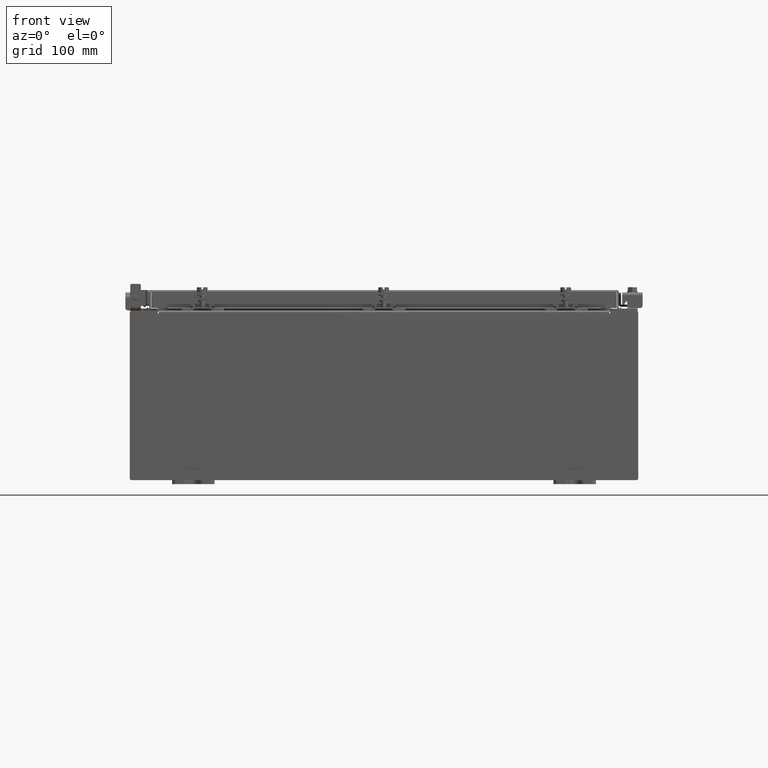
[diagram: clean part render]
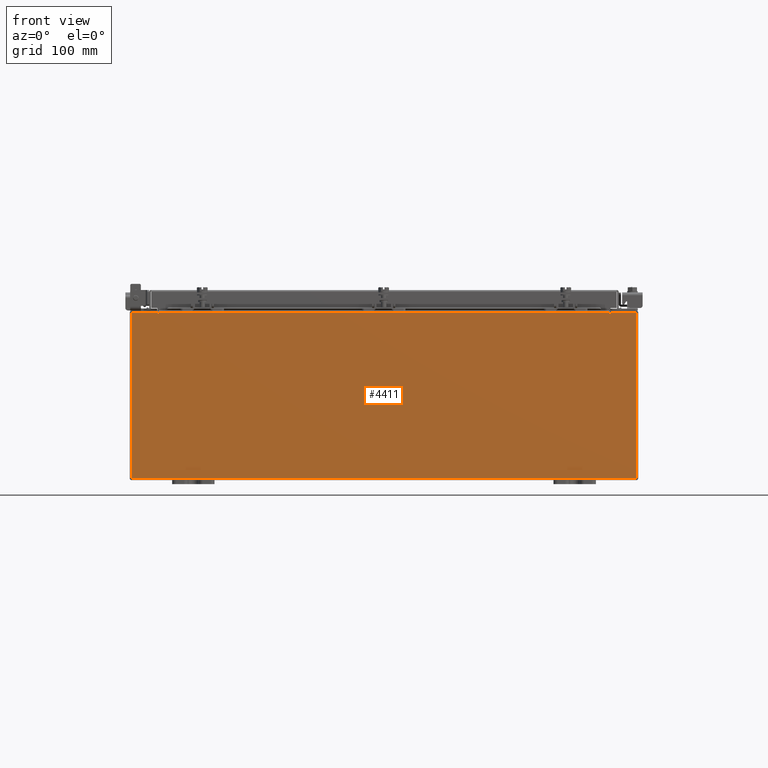
[diagram: same view with one face highlighted and labeled with its STEP entity id]
A machine part, front view. The second image highlights one B-rep face of the part: STEP entity #4411.
In plain terms, the highlighted planar face has unit normal (-0, 1, -0).
Its self-contained STEP definition (entity closure, byte-faithful):
#153 = EDGE_CURVE ( 'NONE', #14960, #22573, #16333, .T. ) ;
#563 = VERTEX_POINT ( 'NONE', #17960 ) ;
#1236 = CARTESIAN_POINT ( 'NONE',  ( 11.92530000000000000, 0.0000000000000000000, -3.925299999999999600 ) ) ;
#1411 = LINE ( 'NONE', #7525, #9578 ) ;
#1540 = CARTESIAN_POINT ( 'NONE',  ( -10.67455000000000200, 0.0000000000000000000, 3.925299999999999600 ) ) ;
#1650 = CARTESIAN_POINT ( 'NONE',  ( 10.67455000000000200, 0.0000000000000000000, 3.874949999999999700 ) ) ;
#1735 = LINE ( 'NONE', #16937, #10475 ) ;
#1742 = DIRECTION ( 'NONE',  ( 0.0000000000000000000, 0.0000000000000000000, 1.000000000000000000 ) ) ;
#2454 = ORIENTED_EDGE ( 'NONE', *, *, #6700, .T. ) ;
#2499 = LINE ( 'NONE', #6096, #19962 ) ;
#2681 = DIRECTION ( 'NONE',  ( -1.000000000000000000, -0.0000000000000000000, -0.0000000000000000000 ) ) ;
#2850 = AXIS2_PLACEMENT_3D ( 'NONE', #14268, #3812, #16014 ) ;
#3111 = LINE ( 'NONE', #19578, #20555 ) ;
#3351 = ORIENTED_EDGE ( 'NONE', *, *, #18026, .F. ) ;
#3430 = EDGE_CURVE ( 'NONE', #13779, #8722, #12433, .T. ) ;
#3443 = CARTESIAN_POINT ( 'NONE',  ( -11.92530000000000000, 0.0000000000000000000, -3.925299999999999600 ) ) ;
#3812 = DIRECTION ( 'NONE',  ( -0.0000000000000000000, 1.000000000000000000, -0.0000000000000000000 ) ) ;
#3911 = VECTOR ( 'NONE', #19098, 39.37007874015748100 ) ;
#4411 = ADVANCED_FACE ( 'NONE', ( #10488 ), #15941, .F. ) ;
#4783 = DIRECTION ( 'NONE',  ( 0.0000000000000000000, 0.0000000000000000000, 1.000000000000000000 ) ) ;
#5610 = DIRECTION ( 'NONE',  ( -4.340572780400004900E-014, 0.0000000000000000000, -1.000000000000000000 ) ) ;
#5904 = EDGE_CURVE ( 'NONE', #6003, #7668, #15575, .T. ) ;
#5921 = CARTESIAN_POINT ( 'NONE',  ( -11.92530000000000000, 0.0000000000000000000, 3.925299999999999600 ) ) ;
#6003 = VERTEX_POINT ( 'NONE', #19843 ) ;
#6096 = CARTESIAN_POINT ( 'NONE',  ( -11.92530000000000000, 0.0000000000000000000, -3.925299999999999600 ) ) ;
#6510 = EDGE_CURVE ( 'NONE', #10861, #14960, #11141, .T. ) ;
#6584 = CARTESIAN_POINT ( 'NONE',  ( -10.63720000000000400, 1.024442997624098700E-016, 3.912299999999999700 ) ) ;
#6700 = EDGE_CURVE ( 'NONE', #13462, #563, #17656, .T. ) ;
#6875 = CARTESIAN_POINT ( 'NONE',  ( -11.92530000000000000, 0.0000000000000000000, 3.925299999999999600 ) ) ;
#7237 = DIRECTION ( 'NONE',  ( 0.0000000000000000000, -1.000000000000000000, 0.0000000000000000000 ) ) ;
#7515 = ORIENTED_EDGE ( 'NONE', *, *, #153, .F. ) ;
#7525 = CARTESIAN_POINT ( 'NONE',  ( -10.63720000000000400, -0.0000000000000000000, 0.0000000000000000000 ) ) ;
#7668 = VERTEX_POINT ( 'NONE', #16895 ) ;
#7884 = CARTESIAN_POINT ( 'NONE',  ( -11.92530000000000000, 0.0000000000000000000, 3.925299999999999600 ) ) ;
#8722 = VERTEX_POINT ( 'NONE', #1540 ) ;
#8867 = LINE ( 'NONE', #21447, #17566 ) ;
#8993 = EDGE_CURVE ( 'NONE', #563, #15577, #8867, .T. ) ;
#9046 = ORIENTED_EDGE ( 'NONE', *, *, #3430, .T. ) ;
#9101 = CARTESIAN_POINT ( 'NONE',  ( -10.65587500000000200, 0.0000000000000000000, 3.874949999999999700 ) ) ;
#9414 = CARTESIAN_POINT ( 'NONE',  ( 10.63720000000000400, 0.0000000000000000000, 0.0000000000000000000 ) ) ;
#9578 = VECTOR ( 'NONE', #17974, 39.37007874015748100 ) ;
#10475 = VECTOR ( 'NONE', #18722, 39.37007874015748100 ) ;
#10488 = FACE_OUTER_BOUND ( 'NONE', #17143, .T. ) ;
#10759 = VERTEX_POINT ( 'NONE', #6584 ) ;
#10860 = DIRECTION ( 'NONE',  ( 0.0000000000000000000, 0.0000000000000000000, -1.000000000000000000 ) ) ;
#10861 = VERTEX_POINT ( 'NONE', #1650 ) ;
#10864 = VECTOR ( 'NONE', #1742, 39.37007874015748100 ) ;
#11141 = CIRCLE ( 'NONE', #2850, 0.01867499999999949400 ) ;
#11745 = CARTESIAN_POINT ( 'NONE',  ( 10.67455000000000200, 0.0000000000000000000, 3.925299999999999600 ) ) ;
#12113 = VERTEX_POINT ( 'NONE', #3443 ) ;
#12425 = CARTESIAN_POINT ( 'NONE',  ( -11.92530000000000000, 0.0000000000000000000, 3.925299999999999600 ) ) ;
#12433 = LINE ( 'NONE', #6875, #3911 ) ;
#12439 = LINE ( 'NONE', #7884, #21676 ) ;
#13050 = VECTOR ( 'NONE', #14644, 39.37007874015748100 ) ;
#13462 = VERTEX_POINT ( 'NONE', #11745 ) ;
#13525 = AXIS2_PLACEMENT_3D ( 'NONE', #9101, #21282, #10860 ) ;
#13651 = CARTESIAN_POINT ( 'NONE',  ( 10.63720000000000400, 0.0000000000000000000, 3.912299999999999700 ) ) ;
#13779 = VERTEX_POINT ( 'NONE', #12425 ) ;
#13936 = CARTESIAN_POINT ( 'NONE',  ( -10.67455000000000200, -0.0000000000000000000, 0.0000000000000000000 ) ) ;
#13992 = ORIENTED_EDGE ( 'NONE', *, *, #15035, .T. ) ;
#14268 = CARTESIAN_POINT ( 'NONE',  ( 10.65587500000000200, 0.0000000000000000000, 3.874949999999999700 ) ) ;
#14644 = DIRECTION ( 'NONE',  ( 1.000000000000000000, 0.0000000000000000000, 0.0000000000000000000 ) ) ;
#14960 = VERTEX_POINT ( 'NONE', #20162 ) ;
#15035 = EDGE_CURVE ( 'NONE', #10759, #22573, #1735, .T. ) ;
#15237 = ORIENTED_EDGE ( 'NONE', *, *, #16417, .F. ) ;
#15263 = VECTOR ( 'NONE', #4783, 39.37007874015748100 ) ;
#15575 = CIRCLE ( 'NONE', #13525, 0.01867499999999949400 ) ;
#15577 = VERTEX_POINT ( 'NONE', #1236 ) ;
#15828 = EDGE_CURVE ( 'NONE', #15577, #12113, #2499, .T. ) ;
#15854 = CARTESIAN_POINT ( 'NONE',  ( 0.0000000000000000000, 0.0000000000000000000, 0.0000000000000000000 ) ) ;
#15941 = PLANE ( 'NONE',  #19178 ) ;
#16014 = DIRECTION ( 'NONE',  ( 0.0000000000000000000, 0.0000000000000000000, -1.000000000000000000 ) ) ;
#16264 = DIRECTION ( 'NONE',  ( 0.0000000000000000000, 0.0000000000000000000, -1.000000000000000000 ) ) ;
#16333 = LINE ( 'NONE', #9414, #15263 ) ;
#16417 = EDGE_CURVE ( 'NONE', #10759, #6003, #1411, .T. ) ;
#16895 = CARTESIAN_POINT ( 'NONE',  ( -10.67455000000000200, 0.0000000000000000000, 3.874949999999999700 ) ) ;
#16937 = CARTESIAN_POINT ( 'NONE',  ( -10.63720000000000400, 1.024442997624098700E-016, 3.912299999999999700 ) ) ;
#17143 = EDGE_LOOP ( 'NONE', ( #3351, #18281, #15237, #13992, #7515, #19428, #19017, #2454, #22231, #18900, #19948, #9046 ) ) ;
#17566 = VECTOR ( 'NONE', #16264, 39.37007874015748100 ) ;
#17656 = LINE ( 'NONE', #5921, #13050 ) ;
#17960 = CARTESIAN_POINT ( 'NONE',  ( 11.92530000000000000, 0.0000000000000000000, 3.925299999999999600 ) ) ;
#17974 = DIRECTION ( 'NONE',  ( 0.0000000000000000000, 0.0000000000000000000, -1.000000000000000000 ) ) ;
#18026 = EDGE_CURVE ( 'NONE', #7668, #8722, #20680, .T. ) ;
#18281 = ORIENTED_EDGE ( 'NONE', *, *, #5904, .F. ) ;
#18722 = DIRECTION ( 'NONE',  ( 1.000000000000000000, 0.0000000000000000000, 0.0000000000000000000 ) ) ;
#18900 = ORIENTED_EDGE ( 'NONE', *, *, #15828, .T. ) ;
#19017 = ORIENTED_EDGE ( 'NONE', *, *, #22295, .F. ) ;
#19098 = DIRECTION ( 'NONE',  ( 1.000000000000000000, 0.0000000000000000000, 0.0000000000000000000 ) ) ;
#19178 = AXIS2_PLACEMENT_3D ( 'NONE', #15854, #7237, #19455 ) ;
#19428 = ORIENTED_EDGE ( 'NONE', *, *, #6510, .F. ) ;
#19455 = DIRECTION ( 'NONE',  ( 0.0000000000000000000, -0.0000000000000000000, -1.000000000000000000 ) ) ;
#19578 = CARTESIAN_POINT ( 'NONE',  ( 10.67454999999983300, -0.0000000000000000000, -4.633366117301815000E-013 ) ) ;
#19843 = CARTESIAN_POINT ( 'NONE',  ( -10.63720000000000400, -0.0000000000000000000, 3.874949999999999700 ) ) ;
#19948 = ORIENTED_EDGE ( 'NONE', *, *, #21120, .T. ) ;
#19962 = VECTOR ( 'NONE', #2681, 39.37007874015748100 ) ;
#20096 = DIRECTION ( 'NONE',  ( -0.0000000000000000000, -0.0000000000000000000, 1.000000000000000000 ) ) ;
#20162 = CARTESIAN_POINT ( 'NONE',  ( 10.63720000000000400, 0.0000000000000000000, 3.874949999999999700 ) ) ;
#20555 = VECTOR ( 'NONE', #5610, 39.37007874015748100 ) ;
#20680 = LINE ( 'NONE', #13936, #10864 ) ;
#21120 = EDGE_CURVE ( 'NONE', #12113, #13779, #12439, .T. ) ;
#21282 = DIRECTION ( 'NONE',  ( -0.0000000000000000000, 1.000000000000000000, -0.0000000000000000000 ) ) ;
#21447 = CARTESIAN_POINT ( 'NONE',  ( 11.92530000000000000, 0.0000000000000000000, 3.925299999999999600 ) ) ;
#21676 = VECTOR ( 'NONE', #20096, 39.37007874015748100 ) ;
#22231 = ORIENTED_EDGE ( 'NONE', *, *, #8993, .T. ) ;
#22295 = EDGE_CURVE ( 'NONE', #13462, #10861, #3111, .T. ) ;
#22573 = VERTEX_POINT ( 'NONE', #13651 ) ;